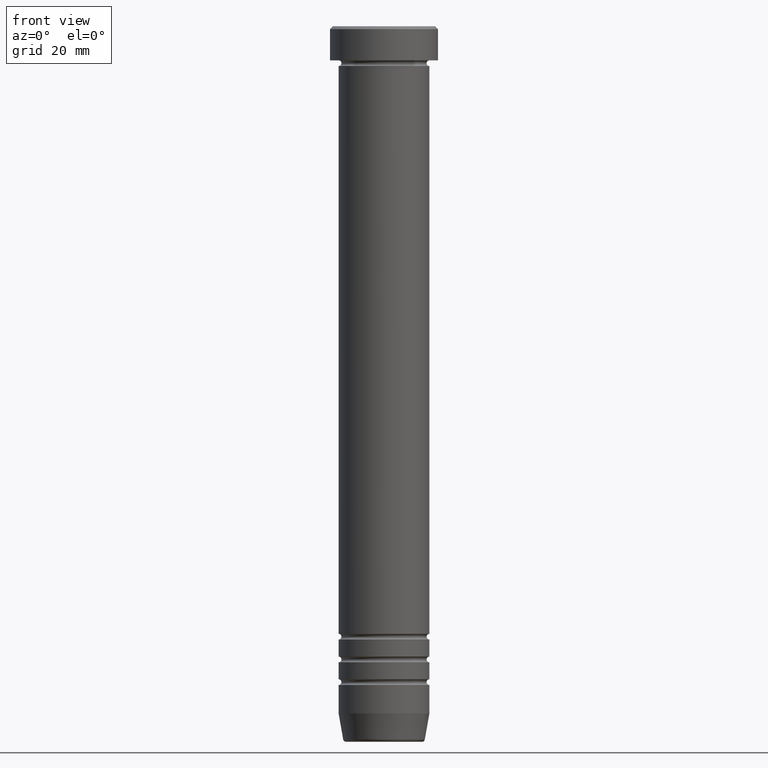
[diagram: clean part render]
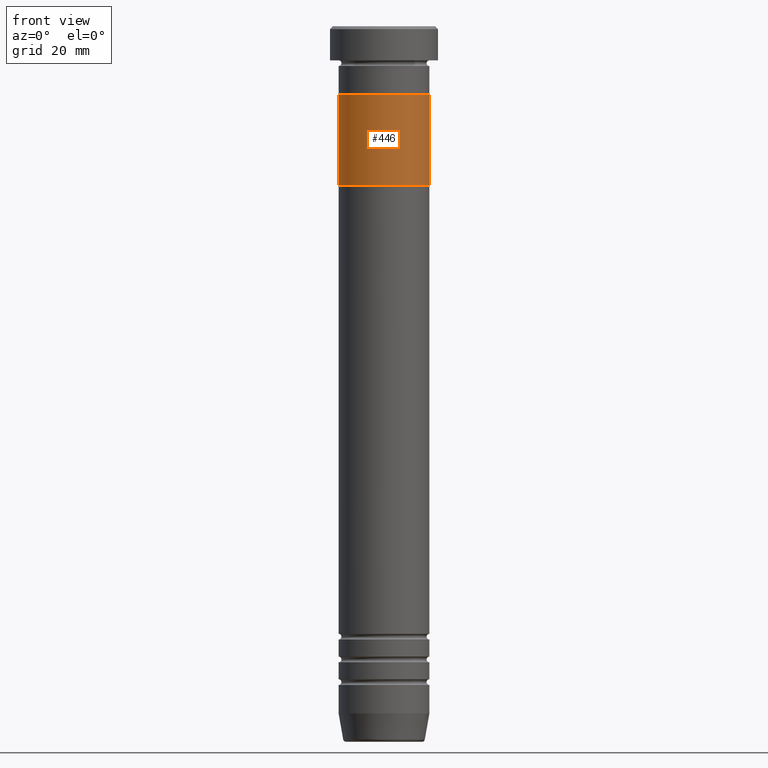
[diagram: same view with one face highlighted and labeled with its STEP entity id]
A machine part, front view. The second image highlights one B-rep face of the part: STEP entity #446.
In plain terms, the highlighted cylindrical surface (partial cylindrical patch) has radius 8 mm, axis along (-0, -0, 1).
Its self-contained STEP definition (entity closure, byte-faithful):
#19 = DIRECTION ( 'NONE',  ( 0.000000000000000000, 0.000000000000000000, -1.000000000000000000 ) ) ;
#65 = AXIS2_PLACEMENT_3D ( 'NONE', #80, #1049, #971 ) ;
#80 = CARTESIAN_POINT ( 'NONE',  ( 0.000000000000000000, 0.000000000000000000, -12.00000000000000000 ) ) ;
#88 = CARTESIAN_POINT ( 'NONE',  ( 0.000000000000000000, 0.000000000000000000, -28.00000000000000000 ) ) ;
#108 = DIRECTION ( 'NONE',  ( -0.000000000000000000, -0.000000000000000000, 1.000000000000000000 ) ) ;
#141 = ORIENTED_EDGE ( 'NONE', *, *, #723, .F. ) ;
#157 = VECTOR ( 'NONE', #905, 1000.000000000000000 ) ;
#202 = DIRECTION ( 'NONE',  ( -0.000000000000000000, -0.000000000000000000, 1.000000000000000000 ) ) ;
#274 = CARTESIAN_POINT ( 'NONE',  ( 8.000000000000000000, 0.000000000000000000, -12.00000000000000000 ) ) ;
#279 = CARTESIAN_POINT ( 'NONE',  ( -8.000000000000000000, 9.797174393178825657E-16, -28.00000000000000000 ) ) ;
#291 = CARTESIAN_POINT ( 'NONE',  ( 0.000000000000000000, 0.000000000000000000, -28.00000000000000000 ) ) ;
#292 = DIRECTION ( 'NONE',  ( -1.000000000000000000, 0.000000000000000000, 0.000000000000000000 ) ) ;
#321 = CIRCLE ( 'NONE', #469, 8.000000000000000000 ) ;
#421 = EDGE_CURVE ( 'NONE', #596, #631, #1081, .T. ) ;
#446 = ADVANCED_FACE ( 'NONE', ( #459 ), #805, .T. ) ;
#454 = CARTESIAN_POINT ( 'NONE',  ( 8.000000000000000000, 0.000000000000000000, -28.00000000000000000 ) ) ;
#459 = FACE_OUTER_BOUND ( 'NONE', #737, .T. ) ;
#469 = AXIS2_PLACEMENT_3D ( 'NONE', #88, #19, #292 ) ;
#474 = CARTESIAN_POINT ( 'NONE',  ( -8.000000000000000000, 9.797174393178825657E-16, -28.00000000000000000 ) ) ;
#508 = CARTESIAN_POINT ( 'NONE',  ( -8.000000000000000000, 9.797174393178825657E-16, -12.00000000000000000 ) ) ;
#553 = AXIS2_PLACEMENT_3D ( 'NONE', #291, #202, #894 ) ;
#596 = VERTEX_POINT ( 'NONE', #627 ) ;
#617 = ORIENTED_EDGE ( 'NONE', *, *, #677, .F. ) ;
#627 = CARTESIAN_POINT ( 'NONE',  ( 8.000000000000000000, 0.000000000000000000, -28.00000000000000000 ) ) ;
#631 = VERTEX_POINT ( 'NONE', #274 ) ;
#633 = LINE ( 'NONE', #279, #157 ) ;
#677 = EDGE_CURVE ( 'NONE', #596, #957, #321, .T. ) ;
#723 = EDGE_CURVE ( 'NONE', #957, #1116, #633, .T. ) ;
#726 = ORIENTED_EDGE ( 'NONE', *, *, #421, .T. ) ;
#737 = EDGE_LOOP ( 'NONE', ( #141, #617, #726, #869 ) ) ;
#805 = CYLINDRICAL_SURFACE ( 'NONE', #553, 8.000000000000000000 ) ;
#869 = ORIENTED_EDGE ( 'NONE', *, *, #1147, .T. ) ;
#894 = DIRECTION ( 'NONE',  ( 1.000000000000000000, 0.000000000000000000, 0.000000000000000000 ) ) ;
#905 = DIRECTION ( 'NONE',  ( -0.000000000000000000, -0.000000000000000000, 1.000000000000000000 ) ) ;
#909 = CIRCLE ( 'NONE', #65, 8.000000000000000000 ) ;
#957 = VERTEX_POINT ( 'NONE', #474 ) ;
#967 = VECTOR ( 'NONE', #108, 1000.000000000000000 ) ;
#971 = DIRECTION ( 'NONE',  ( -1.000000000000000000, 0.000000000000000000, 0.000000000000000000 ) ) ;
#1049 = DIRECTION ( 'NONE',  ( 0.000000000000000000, 0.000000000000000000, -1.000000000000000000 ) ) ;
#1081 = LINE ( 'NONE', #454, #967 ) ;
#1116 = VERTEX_POINT ( 'NONE', #508 ) ;
#1147 = EDGE_CURVE ( 'NONE', #631, #1116, #909, .T. ) ;